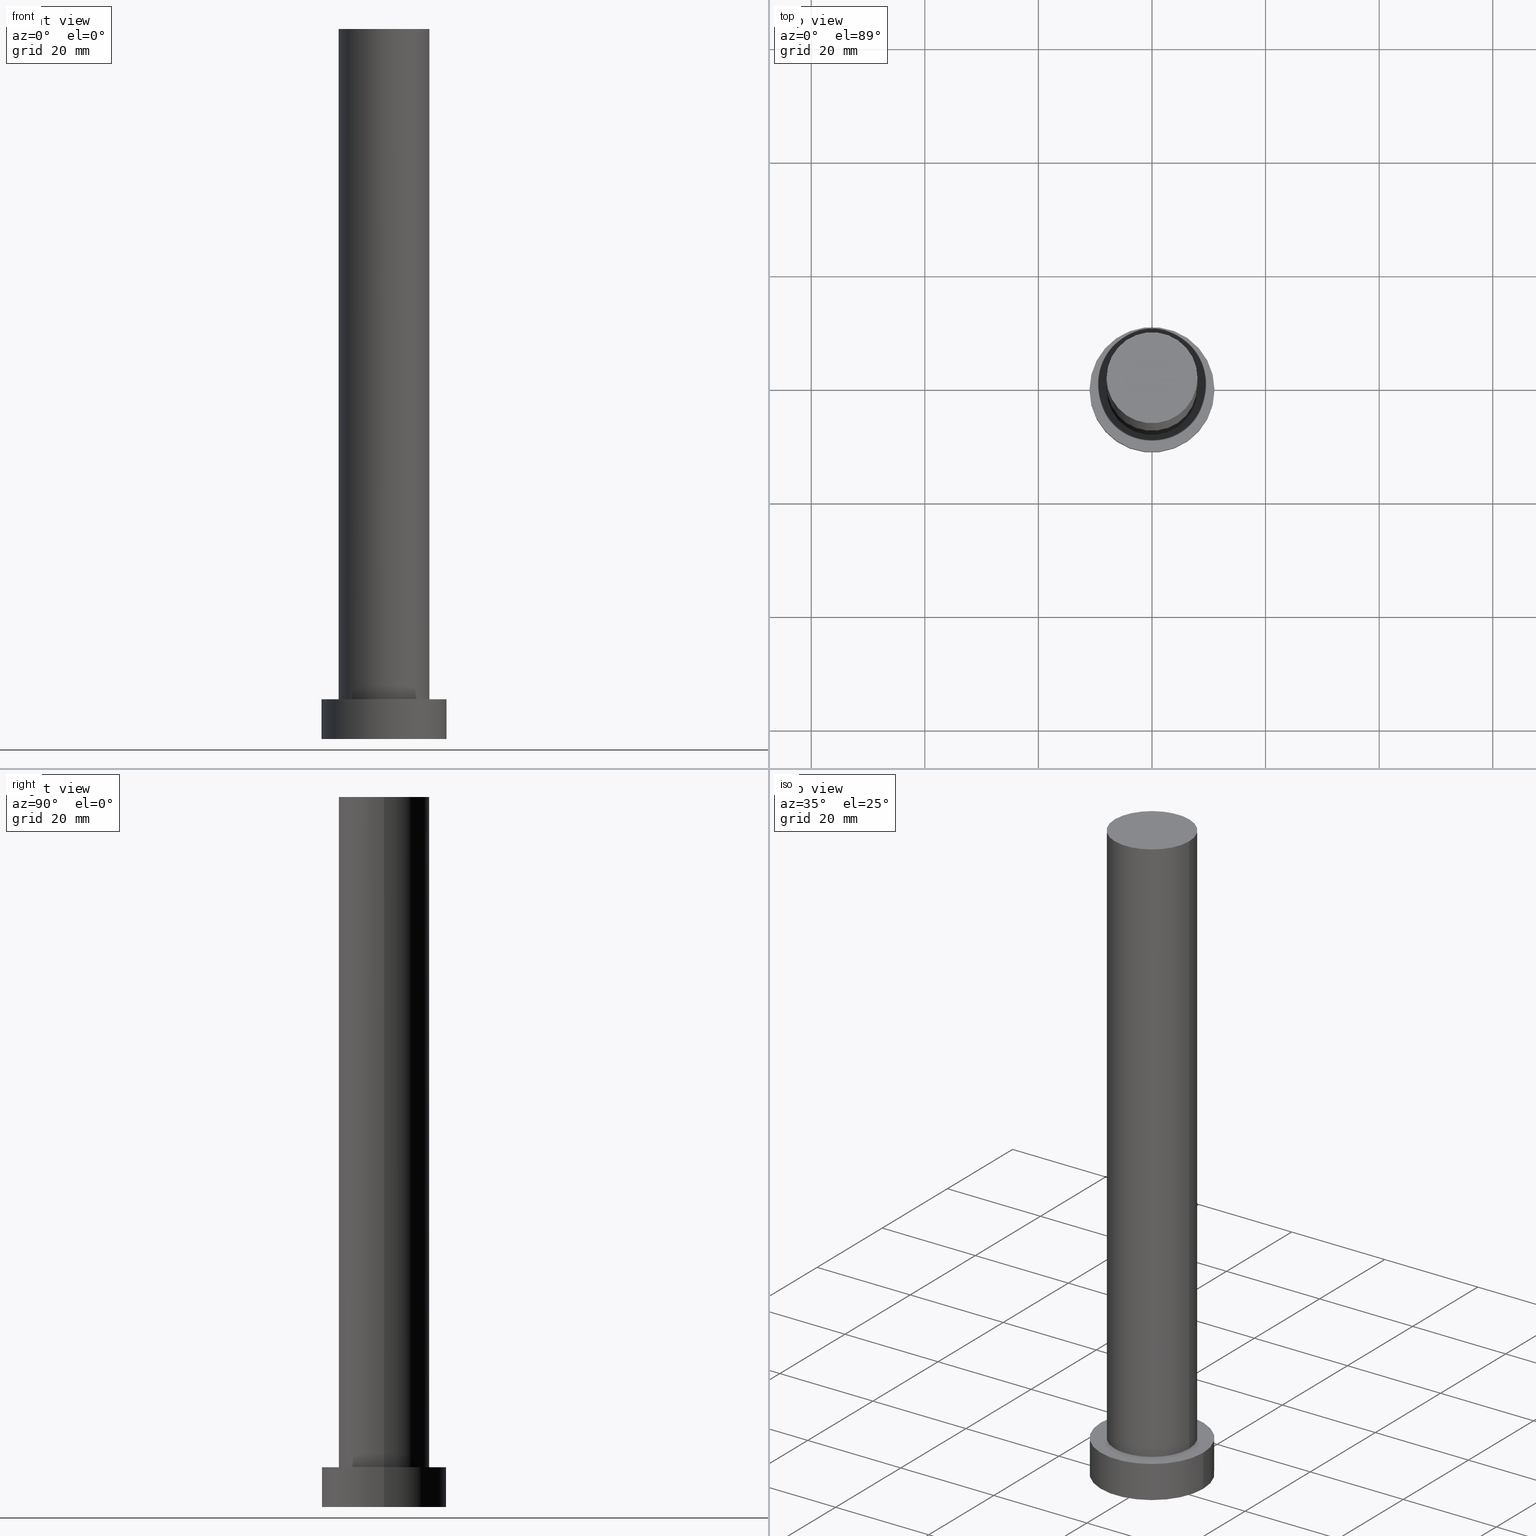
[diagram: canonical four-view strip — front | top / right | iso, engineering-drawing reading convention]
A machine part, canonical four-view strip (front | top / right | iso — engineering-drawing reading convention). The complete STEP part file that produces these views, byte-faithful:
ISO-10303-21;
HEADER;
FILE_DESCRIPTION (( 'STEP AP203' ),
    '1' );
FILE_NAME ('2152.STEP',
    '2023-02-12T10:44:35',
    ( '' ),
    ( '' ),
    'SwSTEP 2.0',
    'SolidWorks 2019',
    '' );
FILE_SCHEMA (( 'CONFIG_CONTROL_DESIGN' ));
ENDSEC;

DATA;
#1 = CC_DESIGN_DATE_AND_TIME_ASSIGNMENT ( #182, #247, ( #126 ) ) ;
#2 = CALENDAR_DATE ( 2023, 12, 2 ) ;
#3 = EDGE_LOOP ( 'NONE', ( #105, #186 ) ) ;
#4 = APPROVAL_STATUS ( 'not_yet_approved' ) ;
#5 = CARTESIAN_POINT ( 'NONE',  ( 0.000000000000000000, 0.000000000000000000, 125.0000000000000000 ) ) ;
#6 = EDGE_LOOP ( 'NONE', ( #250, #248 ) ) ;
#7 = EDGE_CURVE ( 'NONE', #229, #14, #134, .T. ) ;
#8 = VERTEX_POINT ( 'NONE', #95 ) ;
#9 = CARTESIAN_POINT ( 'NONE',  ( -11.00000000000000000, 0.000000000000000000, 7.000000000000000000 ) ) ;
#10 = ADVANCED_FACE ( 'NONE', ( #178 ), #59, .T. ) ;
#11 = DIRECTION ( 'NONE',  ( -0.000000000000000000, -0.000000000000000000, -1.000000000000000000 ) ) ;
#12 = CARTESIAN_POINT ( 'NONE',  ( 11.00000000000000000, 1.347111479062088405E-15, 0.000000000000000000 ) ) ;
#13 = CIRCLE ( 'NONE', #21, 11.00000000000000000 ) ;
#14 = VERTEX_POINT ( 'NONE', #80 ) ;
#15 = CARTESIAN_POINT ( 'NONE',  ( 0.000000000000000000, 0.000000000000000000, 0.000000000000000000 ) ) ;
#16 = AXIS2_PLACEMENT_3D ( 'NONE', #41, #120, #189 ) ;
#17 = CARTESIAN_POINT ( 'NONE',  ( 11.00000000000000000, 1.347111479062088405E-15, 7.000000000000000000 ) ) ;
#18 = PLANE ( 'NONE',  #242 ) ;
#19 = SECURITY_CLASSIFICATION ( '', '', #124 ) ;
#20 = ORIENTED_EDGE ( 'NONE', *, *, #44, .F. ) ;
#21 = AXIS2_PLACEMENT_3D ( 'NONE', #129, #231, #135 ) ;
#22 = DATE_AND_TIME ( #42, #239 ) ;
#23 = DATE_AND_TIME ( #187, #152 ) ;
#24 = ORIENTED_EDGE ( 'NONE', *, *, #39, .F. ) ;
#25 = CIRCLE ( 'NONE', #163, 8.000000000000000000 ) ;
#26 = APPROVAL ( #4, 'NEUR�EN�' ) ;
#27 = DIRECTION ( 'NONE',  ( 0.000000000000000000, 0.000000000000000000, 1.000000000000000000 ) ) ;
#28 = EDGE_LOOP ( 'NONE', ( #91, #24 ) ) ;
#29 = LOCAL_TIME ( 11, 44, 35.00000000000000000, #170 ) ;
#30 = CARTESIAN_POINT ( 'NONE',  ( 0.000000000000000000, 0.000000000000000000, 0.000000000000000000 ) ) ;
#31 = MECHANICAL_CONTEXT ( 'NONE', #112, 'mechanical' ) ;
#32 = ORIENTED_EDGE ( 'NONE', *, *, #85, .F. ) ;
#33 = CARTESIAN_POINT ( 'NONE',  ( -8.000000000000000000, 0.000000000000000000, 125.0000000000000000 ) ) ;
#34 = CARTESIAN_POINT ( 'NONE',  ( 0.000000000000000000, 0.000000000000000000, 7.000000000000000000 ) ) ;
#35 = DIRECTION ( 'NONE',  ( 1.000000000000000000, 0.000000000000000000, -0.000000000000000000 ) ) ;
#36 = DIRECTION ( 'NONE',  ( 0.000000000000000000, 0.000000000000000000, 1.000000000000000000 ) ) ;
#37 = DIRECTION ( 'NONE',  ( 1.000000000000000000, 0.000000000000000000, 0.000000000000000000 ) ) ;
#38 = APPROVAL ( #47, 'NEUR�EN�' ) ;
#39 = EDGE_CURVE ( 'NONE', #107, #43, #98, .T. ) ;
#40 = PERSON_AND_ORGANIZATION_ROLE ( 'design_owner' ) ;
#41 = CARTESIAN_POINT ( 'NONE',  ( 0.000000000000000000, 0.000000000000000000, 7.000000000000000000 ) ) ;
#42 = CALENDAR_DATE ( 2023, 12, 2 ) ;
#43 = VERTEX_POINT ( 'NONE', #131 ) ;
#44 = EDGE_CURVE ( 'NONE', #90, #8, #155, .T. ) ;
#45 = ORIENTED_EDGE ( 'NONE', *, *, #102, .T. ) ;
#46 = DIRECTION ( 'NONE',  ( -0.000000000000000000, -0.000000000000000000, -1.000000000000000000 ) ) ;
#47 = APPROVAL_STATUS ( 'not_yet_approved' ) ;
#48 = PERSON_AND_ORGANIZATION ( #123, #237 ) ;
#49 = EDGE_LOOP ( 'NONE', ( #50, #153 ) ) ;
#50 = ORIENTED_EDGE ( 'NONE', *, *, #161, .F. ) ;
#51 = CARTESIAN_POINT ( 'NONE',  ( 0.000000000000000000, 0.000000000000000000, 7.000000000000000000 ) ) ;
#52 = FACE_OUTER_BOUND ( 'NONE', #28, .T. ) ;
#53 = EDGE_CURVE ( 'NONE', #223, #43, #230, .T. ) ;
#54 = AXIS2_PLACEMENT_3D ( 'NONE', #34, #11, #177 ) ;
#55 = CIRCLE ( 'NONE', #99, 11.00000000000000000 ) ;
#56 = DIRECTION ( 'NONE',  ( -0.000000000000000000, -0.000000000000000000, -1.000000000000000000 ) ) ;
#57 = AXIS2_PLACEMENT_3D ( 'NONE', #63, #61, #37 ) ;
#58 = AXIS2_PLACEMENT_3D ( 'NONE', #15, #217, #78 ) ;
#59 = CYLINDRICAL_SURFACE ( 'NONE', #54, 11.00000000000000000 ) ;
#60 = EDGE_CURVE ( 'NONE', #43, #107, #13, .T. ) ;
#61 = DIRECTION ( 'NONE',  ( 0.000000000000000000, 0.000000000000000000, 1.000000000000000000 ) ) ;
#62 = APPLICATION_PROTOCOL_DEFINITION ( 'international standard', 'config_control_design', 1994, #122 ) ;
#63 = CARTESIAN_POINT ( 'NONE',  ( 0.000000000000000000, 0.000000000000000000, 7.000000000000000000 ) ) ;
#64 = CC_DESIGN_PERSON_AND_ORGANIZATION_ASSIGNMENT ( #181, #203, ( #150 ) ) ;
#65 = DESIGN_CONTEXT ( 'detailed design', #122, 'design' ) ;
#66 = CARTESIAN_POINT ( 'NONE',  ( 8.000000000000000000, 9.797174393178825657E-16, 125.0000000000000000 ) ) ;
#67 = ORIENTED_EDGE ( 'NONE', *, *, #7, .F. ) ;
#68 = DIRECTION ( 'NONE',  ( 0.000000000000000000, 0.000000000000000000, 1.000000000000000000 ) ) ;
#69 = DATE_AND_TIME ( #221, #93 ) ;
#70 = ORIENTED_EDGE ( 'NONE', *, *, #60, .T. ) ;
#71 = PERSON_AND_ORGANIZATION ( #123, #237 ) ;
#72 = ORIENTED_EDGE ( 'NONE', *, *, #7, .T. ) ;
#73 = AXIS2_PLACEMENT_3D ( 'NONE', #79, #27, #156 ) ;
#74 = CARTESIAN_POINT ( 'NONE',  ( 11.00000000000000000, 1.347111479062088405E-15, 7.000000000000000000 ) ) ;
#75 = APPROVAL_ROLE ( '' ) ;
#76 = ORIENTED_EDGE ( 'NONE', *, *, #161, .T. ) ;
#77 = APPROVAL_PERSON_ORGANIZATION ( #48, #26, #75 ) ;
#78 = DIRECTION ( 'NONE',  ( 1.000000000000000000, 0.000000000000000000, -0.000000000000000000 ) ) ;
#79 = CARTESIAN_POINT ( 'NONE',  ( 0.000000000000000000, 0.000000000000000000, 7.000000000000000000 ) ) ;
#80 = CARTESIAN_POINT ( 'NONE',  ( 8.000000000000000000, 9.797174393178825657E-16, 7.000000000000000000 ) ) ;
#81 = CYLINDRICAL_SURFACE ( 'NONE', #218, 11.00000000000000000 ) ;
#82 = DIRECTION ( 'NONE',  ( -1.000000000000000000, 0.000000000000000000, 0.000000000000000000 ) ) ;
#83 = FACE_OUTER_BOUND ( 'NONE', #246, .T. ) ;
#84 = ORIENTED_EDGE ( 'NONE', *, *, #108, .T. ) ;
#85 = EDGE_CURVE ( 'NONE', #90, #229, #25, .T. ) ;
#86 = ORIENTED_EDGE ( 'NONE', *, *, #234, .F. ) ;
#87 = DIRECTION ( 'NONE',  ( -0.000000000000000000, -0.000000000000000000, -1.000000000000000000 ) ) ;
#88 = COORDINATED_UNIVERSAL_TIME_OFFSET ( 1, 0, .AHEAD. ) ;
#89 = CALENDAR_DATE ( 2023, 12, 2 ) ;
#90 = VERTEX_POINT ( 'NONE', #33 ) ;
#91 = ORIENTED_EDGE ( 'NONE', *, *, #60, .F. ) ;
#92 = DIRECTION ( 'NONE',  ( -0.000000000000000000, -0.000000000000000000, -1.000000000000000000 ) ) ;
#93 = LOCAL_TIME ( 11, 44, 35.00000000000000000, #202 ) ;
#94 =( LENGTH_UNIT ( ) NAMED_UNIT ( * ) SI_UNIT ( .MILLI., .METRE. ) );
#95 = CARTESIAN_POINT ( 'NONE',  ( -8.000000000000000000, 0.000000000000000000, 7.000000000000000000 ) ) ;
#96 =( NAMED_UNIT ( * ) SI_UNIT ( $, .STERADIAN. ) SOLID_ANGLE_UNIT ( ) );
#97 = CC_DESIGN_PERSON_AND_ORGANIZATION_ASSIGNMENT ( #71, #121, ( #19 ) ) ;
#98 = CIRCLE ( 'NONE', #166, 11.00000000000000000 ) ;
#99 = AXIS2_PLACEMENT_3D ( 'NONE', #197, #253, #141 ) ;
#100 = CC_DESIGN_SECURITY_CLASSIFICATION ( #19, ( #150 ) ) ;
#101 = CARTESIAN_POINT ( 'NONE',  ( 0.000000000000000000, 0.000000000000000000, 125.0000000000000000 ) ) ;
#102 = EDGE_CURVE ( 'NONE', #168, #107, #191, .T. ) ;
#103 = DIRECTION ( 'NONE',  ( 1.000000000000000000, 0.000000000000000000, 0.000000000000000000 ) ) ;
#104 = APPROVAL_DATE_TIME ( #69, #193 ) ;
#105 = ORIENTED_EDGE ( 'NONE', *, *, #85, .T. ) ;
#106 = COORDINATED_UNIVERSAL_TIME_OFFSET ( 1, 0, .AHEAD. ) ;
#107 = VERTEX_POINT ( 'NONE', #12 ) ;
#108 = EDGE_CURVE ( 'NONE', #14, #8, #167, .T. ) ;
#109 = PERSON_AND_ORGANIZATION_ROLE ( 'design_supplier' ) ;
#110 = FACE_BOUND ( 'NONE', #49, .T. ) ;
#111 = ORIENTED_EDGE ( 'NONE', *, *, #102, .F. ) ;
#112 = APPLICATION_CONTEXT ( 'configuration controlled 3d designs of mechanical parts and assemblies' ) ;
#113 = CARTESIAN_POINT ( 'NONE',  ( 0.000000000000000000, 0.000000000000000000, 125.0000000000000000 ) ) ;
#114 = ADVANCED_FACE ( 'NONE', ( #110, #176 ), #232, .T. ) ;
#115 = VECTOR ( 'NONE', #215, 1000.000000000000000 ) ;
#116 =( GEOMETRIC_REPRESENTATION_CONTEXT ( 3 ) GLOBAL_UNCERTAINTY_ASSIGNED_CONTEXT ( ( #162 ) ) GLOBAL_UNIT_ASSIGNED_CONTEXT ( ( #94, #132, #96 ) ) REPRESENTATION_CONTEXT ( 'NONE', 'WORKASPACE' ) );
#117 = CARTESIAN_POINT ( 'NONE',  ( 0.000000000000000000, 0.000000000000000000, 125.0000000000000000 ) ) ;
#118 = CC_DESIGN_APPROVAL ( #26, ( #19 ) ) ;
#119 = APPROVAL_PERSON_ORGANIZATION ( #165, #193, #185 ) ;
#120 = DIRECTION ( 'NONE',  ( 0.000000000000000000, 0.000000000000000000, 1.000000000000000000 ) ) ;
#121 = PERSON_AND_ORGANIZATION_ROLE ( 'classification_officer' ) ;
#122 = APPLICATION_CONTEXT ( 'configuration controlled 3d designs of mechanical parts and assemblies' ) ;
#123 = PERSON ( 'NEUR�EN�', 'NEUR�EN�', 'NEUR�EN�', ('NEUR�EN�'), ('NEUR�EN�'), ('NEUR�EN�') ) ;
#124 = SECURITY_CLASSIFICATION_LEVEL ( 'unclassified' ) ;
#125 = AXIS2_PLACEMENT_3D ( 'NONE', #143, #68, #103 ) ;
#126 = PRODUCT_DEFINITION ( 'NEZN�M�', '', #150, #65 ) ;
#127 = CYLINDRICAL_SURFACE ( 'NONE', #251, 8.000000000000000000 ) ;
#128 = PERSON_AND_ORGANIZATION ( #123, #237 ) ;
#129 = CARTESIAN_POINT ( 'NONE',  ( 0.000000000000000000, 0.000000000000000000, 0.000000000000000000 ) ) ;
#130 = CC_DESIGN_PERSON_AND_ORGANIZATION_ASSIGNMENT ( #249, #109, ( #150 ) ) ;
#131 = CARTESIAN_POINT ( 'NONE',  ( -11.00000000000000000, 0.000000000000000000, 0.000000000000000000 ) ) ;
#132 =( NAMED_UNIT ( * ) PLANE_ANGLE_UNIT ( ) SI_UNIT ( $, .RADIAN. ) );
#133 = DIRECTION ( 'NONE',  ( 1.000000000000000000, 0.000000000000000000, 0.000000000000000000 ) ) ;
#134 = LINE ( 'NONE', #236, #115 ) ;
#135 = DIRECTION ( 'NONE',  ( 1.000000000000000000, 0.000000000000000000, 0.000000000000000000 ) ) ;
#136 = PLANE ( 'NONE',  #58 ) ;
#137 = CIRCLE ( 'NONE', #125, 8.000000000000000000 ) ;
#138 = DIRECTION ( 'NONE',  ( 0.000000000000000000, 0.000000000000000000, 1.000000000000000000 ) ) ;
#139 = VECTOR ( 'NONE', #56, 1000.000000000000000 ) ;
#140 = EDGE_CURVE ( 'NONE', #168, #223, #55, .T. ) ;
#141 = DIRECTION ( 'NONE',  ( 1.000000000000000000, 0.000000000000000000, 0.000000000000000000 ) ) ;
#142 = CIRCLE ( 'NONE', #16, 11.00000000000000000 ) ;
#143 = CARTESIAN_POINT ( 'NONE',  ( 0.000000000000000000, 0.000000000000000000, 125.0000000000000000 ) ) ;
#144 = DATE_TIME_ROLE ( 'classification_date' ) ;
#145 = ORIENTED_EDGE ( 'NONE', *, *, #140, .F. ) ;
#146 = DIRECTION ( 'NONE',  ( -1.000000000000000000, 0.000000000000000000, 0.000000000000000000 ) ) ;
#147 = APPROVAL_DATE_TIME ( #22, #38 ) ;
#148 = FACE_OUTER_BOUND ( 'NONE', #244, .T. ) ;
#149 = VECTOR ( 'NONE', #194, 1000.000000000000000 ) ;
#150 = PRODUCT_DEFINITION_FORMATION_WITH_SPECIFIED_SOURCE ( 'LIBOVOLN�', '', #192, .NOT_KNOWN. ) ;
#151 = SHAPE_DEFINITION_REPRESENTATION ( #183, #245 ) ;
#152 = LOCAL_TIME ( 11, 44, 35.00000000000000000, #205 ) ;
#153 = ORIENTED_EDGE ( 'NONE', *, *, #108, .F. ) ;
#154 = ADVANCED_FACE ( 'NONE', ( #238 ), #18, .T. ) ;
#155 = LINE ( 'NONE', #190, #149 ) ;
#156 = DIRECTION ( 'NONE',  ( 1.000000000000000000, 0.000000000000000000, 0.000000000000000000 ) ) ;
#157 = CARTESIAN_POINT ( 'NONE',  ( 0.000000000000000000, 0.000000000000000000, 0.000000000000000000 ) ) ;
#158 = EDGE_LOOP ( 'NONE', ( #111, #86, #222, #70 ) ) ;
#159 = ADVANCED_FACE ( 'NONE', ( #255 ), #81, .T. ) ;
#160 = APPROVAL_PERSON_ORGANIZATION ( #171, #38, #227 ) ;
#161 = EDGE_CURVE ( 'NONE', #8, #14, #206, .T. ) ;
#162 = UNCERTAINTY_MEASURE_WITH_UNIT (LENGTH_MEASURE( 1.000000000000000082E-05 ), #94, 'distance_accuracy_value', 'NONE');
#163 = AXIS2_PLACEMENT_3D ( 'NONE', #113, #195, #133 ) ;
#164 = CARTESIAN_POINT ( 'NONE',  ( 0.000000000000000000, 0.000000000000000000, 7.000000000000000000 ) ) ;
#165 = PERSON_AND_ORGANIZATION ( #123, #237 ) ;
#166 = AXIS2_PLACEMENT_3D ( 'NONE', #30, #213, #252 ) ;
#167 = CIRCLE ( 'NONE', #73, 8.000000000000000000 ) ;
#168 = VERTEX_POINT ( 'NONE', #74 ) ;
#169 = EDGE_LOOP ( 'NONE', ( #145, #45, #204, #207 ) ) ;
#170 = COORDINATED_UNIVERSAL_TIME_OFFSET ( 1, 0, .AHEAD. ) ;
#171 = PERSON_AND_ORGANIZATION ( #123, #237 ) ;
#172 = ORIENTED_EDGE ( 'NONE', *, *, #44, .T. ) ;
#173 = LOCAL_TIME ( 11, 44, 35.00000000000000000, #106 ) ;
#174 = EDGE_CURVE ( 'NONE', #229, #90, #137, .T. ) ;
#175 = AXIS2_PLACEMENT_3D ( 'NONE', #101, #87, #146 ) ;
#176 = FACE_OUTER_BOUND ( 'NONE', #6, .T. ) ;
#177 = DIRECTION ( 'NONE',  ( -1.000000000000000000, 0.000000000000000000, 0.000000000000000000 ) ) ;
#178 = FACE_OUTER_BOUND ( 'NONE', #169, .T. ) ;
#179 = DIRECTION ( 'NONE',  ( 1.000000000000000000, 0.000000000000000000, -0.000000000000000000 ) ) ;
#180 = CC_DESIGN_APPROVAL ( #38, ( #150 ) ) ;
#181 = PERSON_AND_ORGANIZATION ( #123, #237 ) ;
#182 = DATE_AND_TIME ( #2, #29 ) ;
#183 = PRODUCT_DEFINITION_SHAPE ( 'NONE', 'NONE',  #126 ) ;
#184 = ADVANCED_FACE ( 'NONE', ( #148 ), #226, .T. ) ;
#185 = APPROVAL_ROLE ( '' ) ;
#186 = ORIENTED_EDGE ( 'NONE', *, *, #174, .T. ) ;
#187 = CALENDAR_DATE ( 2023, 12, 2 ) ;
#188 = CC_DESIGN_PERSON_AND_ORGANIZATION_ASSIGNMENT ( #128, #225, ( #126 ) ) ;
#189 = DIRECTION ( 'NONE',  ( 1.000000000000000000, 0.000000000000000000, 0.000000000000000000 ) ) ;
#190 = CARTESIAN_POINT ( 'NONE',  ( -8.000000000000000000, 0.000000000000000000, 125.0000000000000000 ) ) ;
#191 = LINE ( 'NONE', #17, #224 ) ;
#192 = PRODUCT ( '2152', '2152', '', ( #31 ) ) ;
#193 = APPROVAL ( #196, 'NEUR�EN�' ) ;
#194 = DIRECTION ( 'NONE',  ( -0.000000000000000000, -0.000000000000000000, -1.000000000000000000 ) ) ;
#195 = DIRECTION ( 'NONE',  ( 0.000000000000000000, 0.000000000000000000, 1.000000000000000000 ) ) ;
#196 = APPROVAL_STATUS ( 'not_yet_approved' ) ;
#197 = CARTESIAN_POINT ( 'NONE',  ( 0.000000000000000000, 0.000000000000000000, 7.000000000000000000 ) ) ;
#198 = DIRECTION ( 'NONE',  ( 0.000000000000000000, 0.000000000000000000, 1.000000000000000000 ) ) ;
#199 = ADVANCED_FACE ( 'NONE', ( #83 ), #127, .T. ) ;
#200 = DIRECTION ( 'NONE',  ( -0.000000000000000000, -0.000000000000000000, -1.000000000000000000 ) ) ;
#201 = AXIS2_PLACEMENT_3D ( 'NONE', #157, #36, #233 ) ;
#202 = COORDINATED_UNIVERSAL_TIME_OFFSET ( 1, 0, .AHEAD. ) ;
#203 = PERSON_AND_ORGANIZATION_ROLE ( 'creator' ) ;
#204 = ORIENTED_EDGE ( 'NONE', *, *, #39, .T. ) ;
#205 = COORDINATED_UNIVERSAL_TIME_OFFSET ( 1, 0, .AHEAD. ) ;
#206 = CIRCLE ( 'NONE', #57, 8.000000000000000000 ) ;
#207 = ORIENTED_EDGE ( 'NONE', *, *, #53, .F. ) ;
#208 = DATE_AND_TIME ( #89, #173 ) ;
#209 = ORIENTED_EDGE ( 'NONE', *, *, #174, .F. ) ;
#210 = CC_DESIGN_PERSON_AND_ORGANIZATION_ASSIGNMENT ( #219, #40, ( #192 ) ) ;
#211 = CLOSED_SHELL ( 'NONE', ( #199, #10, #159, #114, #254, #184, #154 ) ) ;
#212 = APPLICATION_PROTOCOL_DEFINITION ( 'international standard', 'config_control_design', 1994, #112 ) ;
#213 = DIRECTION ( 'NONE',  ( 0.000000000000000000, 0.000000000000000000, 1.000000000000000000 ) ) ;
#214 = CC_DESIGN_DATE_AND_TIME_ASSIGNMENT ( #208, #144, ( #19 ) ) ;
#215 = DIRECTION ( 'NONE',  ( -0.000000000000000000, -0.000000000000000000, -1.000000000000000000 ) ) ;
#216 = AXIS2_PLACEMENT_3D ( 'NONE', #51, #138, #35 ) ;
#217 = DIRECTION ( 'NONE',  ( 0.000000000000000000, 0.000000000000000000, 1.000000000000000000 ) ) ;
#218 = AXIS2_PLACEMENT_3D ( 'NONE', #164, #200, #240 ) ;
#219 = PERSON_AND_ORGANIZATION ( #123, #237 ) ;
#220 = PRODUCT_RELATED_PRODUCT_CATEGORY ( 'detail', '', ( #192 ) ) ;
#221 = CALENDAR_DATE ( 2023, 12, 2 ) ;
#222 = ORIENTED_EDGE ( 'NONE', *, *, #53, .T. ) ;
#223 = VERTEX_POINT ( 'NONE', #243 ) ;
#224 = VECTOR ( 'NONE', #92, 1000.000000000000000 ) ;
#225 = PERSON_AND_ORGANIZATION_ROLE ( 'creator' ) ;
#226 = CYLINDRICAL_SURFACE ( 'NONE', #175, 8.000000000000000000 ) ;
#227 = APPROVAL_ROLE ( '' ) ;
#228 = APPROVAL_DATE_TIME ( #23, #26 ) ;
#229 = VERTEX_POINT ( 'NONE', #66 ) ;
#230 = LINE ( 'NONE', #9, #139 ) ;
#231 = DIRECTION ( 'NONE',  ( 0.000000000000000000, 0.000000000000000000, 1.000000000000000000 ) ) ;
#232 = PLANE ( 'NONE',  #216 ) ;
#233 = DIRECTION ( 'NONE',  ( 1.000000000000000000, 0.000000000000000000, 0.000000000000000000 ) ) ;
#234 = EDGE_CURVE ( 'NONE', #223, #168, #142, .T. ) ;
#235 = CC_DESIGN_APPROVAL ( #193, ( #126 ) ) ;
#236 = CARTESIAN_POINT ( 'NONE',  ( 8.000000000000000000, 9.797174393178825657E-16, 125.0000000000000000 ) ) ;
#237 = ORGANIZATION ( 'NEUR�EN�', 'NEUR�EN�', '' ) ;
#238 = FACE_OUTER_BOUND ( 'NONE', #3, .T. ) ;
#239 = LOCAL_TIME ( 11, 44, 35.00000000000000000, #88 ) ;
#240 = DIRECTION ( 'NONE',  ( -1.000000000000000000, 0.000000000000000000, 0.000000000000000000 ) ) ;
#241 = MANIFOLD_SOLID_BREP ( 'P�idat vysunut�m3', #211 ) ;
#242 = AXIS2_PLACEMENT_3D ( 'NONE', #117, #198, #179 ) ;
#243 = CARTESIAN_POINT ( 'NONE',  ( -11.00000000000000000, 0.000000000000000000, 7.000000000000000000 ) ) ;
#244 = EDGE_LOOP ( 'NONE', ( #67, #32, #172, #76 ) ) ;
#245 = ADVANCED_BREP_SHAPE_REPRESENTATION ( '2152', ( #241, #201 ), #116 ) ;
#246 = EDGE_LOOP ( 'NONE', ( #209, #72, #84, #20 ) ) ;
#247 = DATE_TIME_ROLE ( 'creation_date' ) ;
#248 = ORIENTED_EDGE ( 'NONE', *, *, #140, .T. ) ;
#249 = PERSON_AND_ORGANIZATION ( #123, #237 ) ;
#250 = ORIENTED_EDGE ( 'NONE', *, *, #234, .T. ) ;
#251 = AXIS2_PLACEMENT_3D ( 'NONE', #5, #46, #82 ) ;
#252 = DIRECTION ( 'NONE',  ( 1.000000000000000000, 0.000000000000000000, 0.000000000000000000 ) ) ;
#253 = DIRECTION ( 'NONE',  ( 0.000000000000000000, 0.000000000000000000, 1.000000000000000000 ) ) ;
#254 = ADVANCED_FACE ( 'NONE', ( #52 ), #136, .F. ) ;
#255 = FACE_OUTER_BOUND ( 'NONE', #158, .T. ) ;
ENDSEC;
END-ISO-10303-21;
